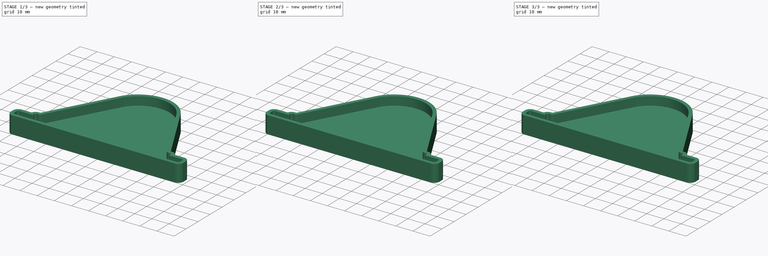
[diagram: build sequence overview — one tinted view per stage of 3, left to right]
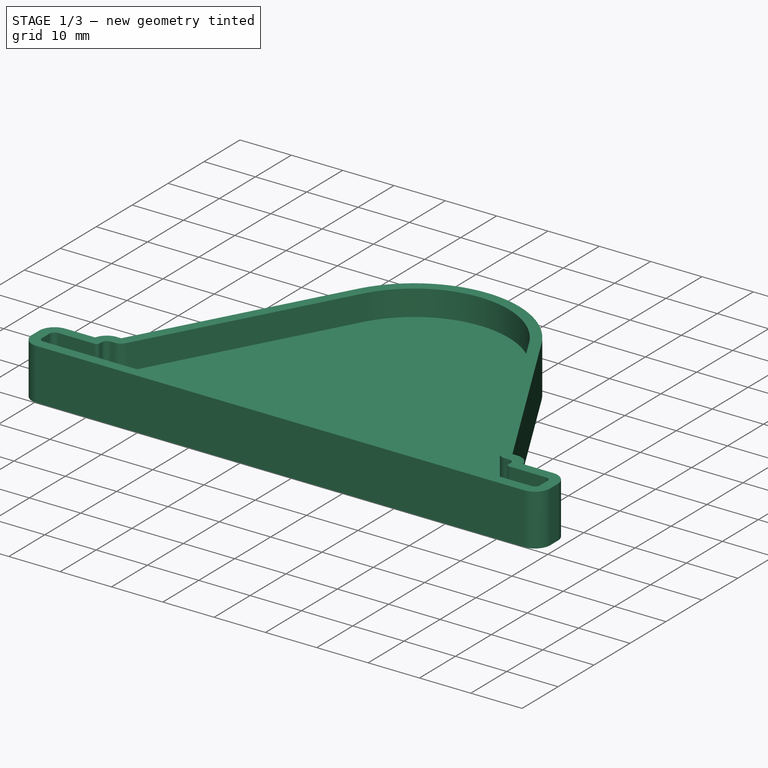
[diagram: stage 1 of 3 — iso view after this stage's code; geometry added in this stage tinted green]
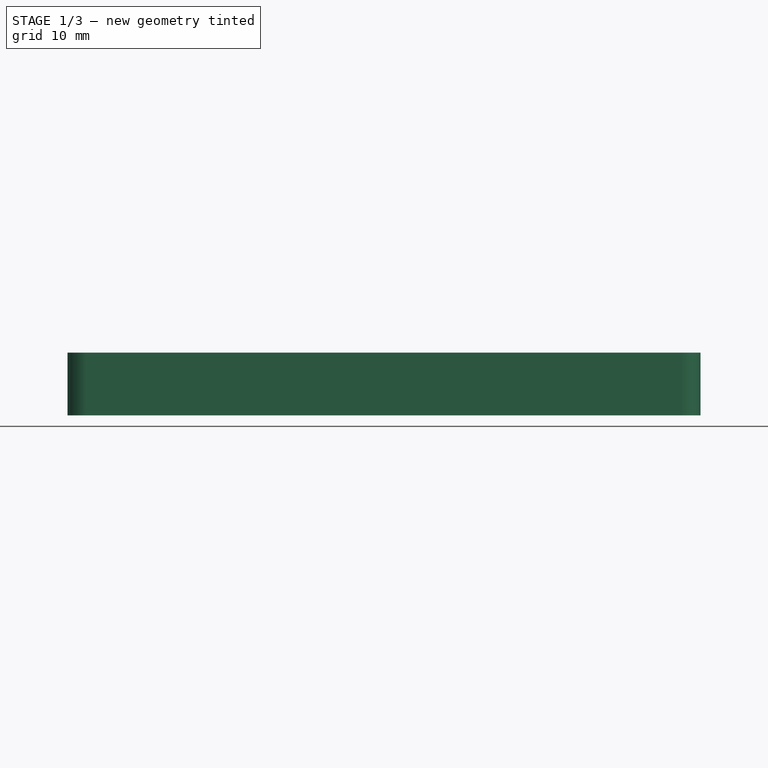
[diagram: stage 1 of 3 — front view after this stage's code; geometry added in this stage tinted green]
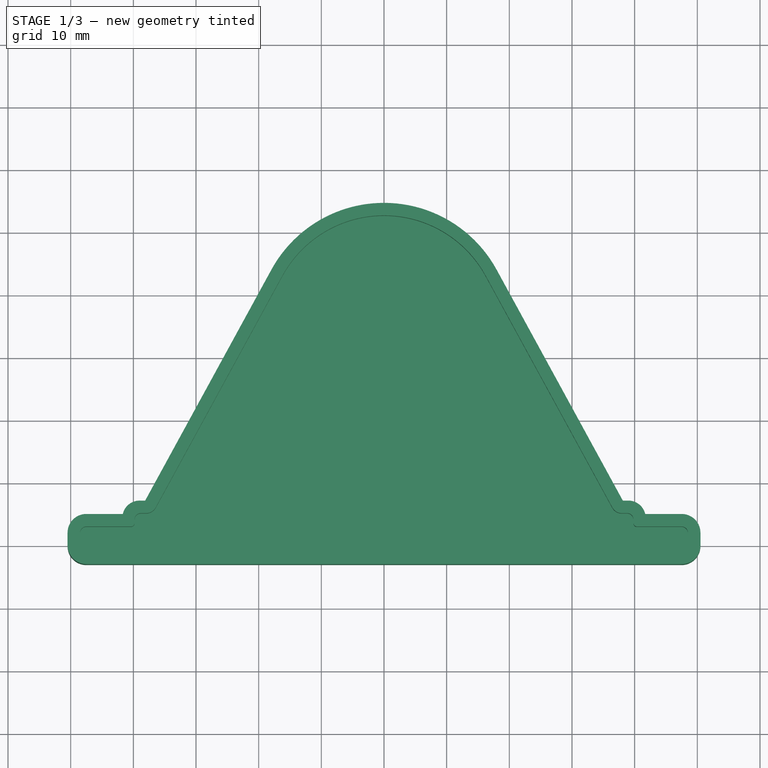
[diagram: stage 1 of 3 — top view after this stage's code; geometry added in this stage tinted green]
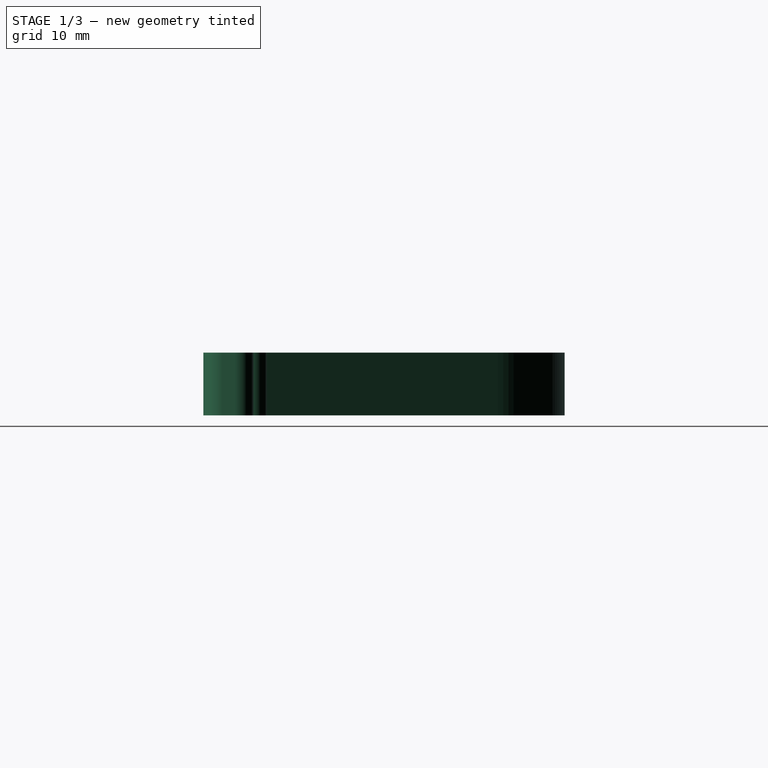
[diagram: stage 1 of 3 — right view after this stage's code; geometry added in this stage tinted green]
FCSTD DOCUMENT  (FreeCAD 1.0R39109 (Git))
Label: SoporteSensor
License: All rights reserved
LicenseURL: http://en.wikipedia.org/wiki/All_rights_reserved
objects: Sketcher::SketchObject×9, Part::Offset2D×3, PartDesign::Pad×3, PartDesign::Pocket×3, PartDesign::Body×3
note: 42 computed .brp shape members not serialized (recipe doc carries the construction recipe); baked Part::Feature solids carry a one-line shape summary decoded from their .brp

FEATURE [PartDesign::Body] Body001
  AllowCompound = false
  Group = -> [Sketch004,Sketch005,Sketch006,Pad001,Pocket001]
  Origin = -> Origin001
  Placement = pos=(62,52,0) rot=(0,0,1;3.14159rad)
  Tip = -> Pocket001
FEATURE [Sketcher::SketchObject] Sketch007
  ArcFitTolerance = 1e-06
  AttachmentSupport = -> [XY_Plane002]
  FullyConstrained = false
  MakeInternals = false
  MapMode = 5
  sketch-geometry (8):
    g0: LineSegment StartX=-47.5 StartY=0 StartZ=0 EndX=47.5 EndY=0 EndZ=0
    g1: LineSegment StartX=47.5 StartY=0 StartZ=0 EndX=47.5 EndY=2 EndZ=0
    g2: LineSegment StartX=47.5 StartY=2 StartZ=0 EndX=37.5 EndY=2 EndZ=0
    g3: LineSegment StartX=-47.5 StartY=2 StartZ=0 EndX=-47.5 EndY=0 EndZ=0
    g4: LineSegment StartX=-37.5 StartY=2 StartZ=0 EndX=-47.5 EndY=2 EndZ=0
    g5: ArcOfCircle CenterX=0 CenterY=34.1832 CenterZ=0 NormalX=0 NormalY=0 NormalZ=1 AngleXU=0 Radius=17.4714 StartAngle=0.483606 EndAngle=2.64141
    g6: LineSegment StartX=-15.3311 StartY=42.5623 StartZ=0 EndX=-37.5 EndY=2 EndZ=0
    g7: LineSegment StartX=15.4679 StartY=42.307 StartZ=0 EndX=37.5 EndY=2 EndZ=0
  constraints (18):
    c: Coincident(g0,g1)
    c: Coincident(g1,g2)
    c: Coincident(g4,g3)
    c: Coincident(g3,g0)
    c: Horizontal(g0)
    c: Horizontal(g2)
    c: Vertical(g1)
    c: Vertical(g3)
    c: Distance(g1,g3) = 95
    c: Distance(g0,g4) = 2
    c: PointOnObject(g0,g-1)
    c: PointOnObject(g6,g4)
    c: Equal(g2,g4)
    c: Horizontal(g4)
    c: Symmetric(g6,g2,g-2)
    c: PointOnObject(g5,g-2)
    c: Tangent(g5,g6) = -1.5708
    c: Coincident(g5,g7)
FEATURE [Sketcher::SketchObject] Sketch009
  ArcFitTolerance = 1e-06
  FullyConstrained = false
  MakeInternals = false
  Placement = pos=(0,0,20) rot=(0,0,1;0rad)
  sketch-geometry (26):
    g0: ArcOfCircle CenterX=-2.12857e-11 CenterY=34.1832 CenterZ=0 NormalX=0 NormalY=0 NormalZ=1 AngleXU=0 Radius=20.4714 StartAngle=0.500183 EndAngle=1.5708
    g1: ArcOfCircle CenterX=2.12857e-11 CenterY=34.1832 CenterZ=0 NormalX=0 NormalY=0 NormalZ=1 AngleXU=0 Radius=20.4714 StartAngle=1.5708 EndAngle=2.64141
    g2: LineSegment StartX=-17.9636 StartY=44.001 StartZ=0 EndX=-38.1146 EndY=7.13094 EndZ=0
    g3: LineSegment StartX=-38.8142 StartY=7.13094 StartZ=0 EndX=-38.8142 EndY=7.13094 EndZ=0
    g4: ArcOfCircle CenterX=-38.8142 CenterY=5.13094 CenterZ=0 NormalX=0 NormalY=0 NormalZ=1 AngleXU=-3.14159 Radius=2 StartAngle=4.71239 EndAngle=4.71239
    g5: ArcOfCircle CenterX=-39.8142 CenterY=4.13094 CenterZ=0 NormalX=0 NormalY=0 NormalZ=1 AngleXU=-1.5708 Radius=2 StartAngle=4.71239 EndAngle=4.71239
    g6: LineSegment StartX=-41.6856 StartY=5 StartZ=0 EndX=-47.5 EndY=5 EndZ=0
    g7: ArcOfCircle CenterX=-47.5 CenterY=2 CenterZ=0 NormalX=0 NormalY=0 NormalZ=1 AngleXU=-1.5708 Radius=3 StartAngle=3.14159 EndAngle=4.71239
    g8: ArcOfCircle CenterX=-48.5 CenterY=2 CenterZ=0 NormalX=0 NormalY=0 NormalZ=1 AngleXU=-1.5708 Radius=2 StartAngle=4.71239 EndAngle=4.71239
    g9: LineSegment StartX=-50.5 StartY=2 StartZ=0 EndX=-50.5 EndY=4e-16 EndZ=0
    g10: ArcOfCircle CenterX=-47.5 CenterY=0 CenterZ=0 NormalX=0 NormalY=0 NormalZ=1 AngleXU=0 Radius=3 StartAngle=3.14159 EndAngle=4.71239
    g11: LineSegment StartX=-47.5 StartY=-3 StartZ=0 EndX=0 EndY=-3 EndZ=0
    g12: LineSegment StartX=47.5 StartY=-3 StartZ=0 EndX=0 EndY=-3 EndZ=0
    g13: ArcOfCircle CenterX=47.5 CenterY=0 CenterZ=0 NormalX=0 NormalY=0 NormalZ=1 AngleXU=0 Radius=3 StartAngle=4.71239 EndAngle=6.28319
    g14: LineSegment StartX=50.5 StartY=2 StartZ=0 EndX=50.5 EndY=-9e-16 EndZ=0
    g15: ArcOfCircle CenterX=47.5 CenterY=2 CenterZ=0 NormalX=0 NormalY=0 NormalZ=1 AngleXU=-1.5708 Radius=3 StartAngle=1.5708 EndAngle=3.14159
    g16: LineSegment StartX=41.6856 StartY=5 StartZ=0 EndX=47.5 EndY=5 EndZ=0
    g17: ArcOfCircle CenterX=39.8142 CenterY=4.13094 CenterZ=0 NormalX=0 NormalY=0 NormalZ=1 AngleXU=1.5708 Radius=2 StartAngle=4.71239 EndAngle=4.71239
    g18: ArcOfCircle CenterX=38.8142 CenterY=4.13094 CenterZ=0 NormalX=0 NormalY=0 NormalZ=1 AngleXU=0 Radius=3 StartAngle=3.16253e-08 EndAngle=1.18661e-06
    g19: ArcOfCircle CenterX=38.8142 CenterY=5.13094 CenterZ=0 NormalX=0 NormalY=0 NormalZ=1 AngleXU=-3.14159 Radius=2 StartAngle=4.71239 EndAngle=4.71239
    g20: LineSegment StartX=38.8142 StartY=7.13094 StartZ=0 EndX=38.1146 EndY=7.13094 EndZ=0
    g21: LineSegment StartX=17.9636 StartY=44.001 StartZ=0 EndX=38.1146 EndY=7.13094 EndZ=0
    g22: ArcOfCircle CenterX=-38.8142 CenterY=4.13094 CenterZ=0 NormalX=0 NormalY=0 NormalZ=1 AngleXU=0 Radius=3 StartAngle=3.14159 EndAngle=3.14159
    g23: LineSegment StartX=-38.8142 StartY=7.13094 StartZ=0 EndX=-38.1146 EndY=7.13094 EndZ=0
    g24: ArcOfCircle CenterX=-38.9842 CenterY=4.36004 CenterZ=0 NormalX=0 NormalY=0 NormalZ=1 AngleXU=0 Radius=2.77611 StartAngle=1.50951 EndAngle=2.90898
    g25: ArcOfCircle CenterX=38.9812 CenterY=4.35596 CenterZ=0 NormalX=0 NormalY=0 NormalZ=1 AngleXU=0 Radius=2.78 StartAngle=0.233793 EndAngle=1.6309
  constraints (37):
    c: Coincident(g0,g1)
    c: Coincident(g1,g2)
    c: Horizontal(g3)
    c: Coincident(g3,g4)
    c: Coincident(g22,g5)
    c: Horizontal(g6)
    c: Coincident(g6,g7)
    c: Coincident(g7,g8)
    c: Coincident(g8,g9)
    c: Vertical(g9)
    c: Coincident(g9,g10)
    c: Coincident(g10,g11)
    c: Horizontal(g11)
    c: Coincident(g11,g12)
    c: Horizontal(g12)
    c: Coincident(g12,g13)
    c: Coincident(g13,g14)
    c: Vertical(g14)
    c: Coincident(g14,g15)
    c: Coincident(g15,g16)
    c: Horizontal(g16)
    c: Coincident(g17,g18)
    c: Coincident(g19,g20)
    c: Horizontal(g20)
    c: Coincident(g20,g21)
    c: Coincident(g21,g0)
    c: Coincident(g5,g22)
    c: PointOnObject(g3,g4)
    c: Coincident(g23,g3)
    c: Coincident(g23,g2)
    c: Horizontal(g23)
    c: Coincident(g17,g18)
    c: Coincident(g24,g4)
    c: Coincident(g24,g6)
    c: Coincident(g25,g19)
    c: Coincident(g25,g16)
    c: Radius(g25) = 2.78
FEATURE [PartDesign::Pad] Pad002
  Direction = (0,0,1)
  Length = 10
  Length2 = 10
  Placement = pos=(0,0,20) rot=(0,0,1;0rad)
  Profile = -> Sketch009
  ReferenceAxis = -> Sketch009 [N_Axis]
  Suppressed = false
  Type = 0
FEATURE [Sketcher::SketchObject] Sketch008
  ArcFitTolerance = 1e-06
  AttachmentSupport = -> [Pad002]
  FullyConstrained = false
  MakeInternals = false
  MapMode = 5
  Placement = pos=(0,0,30) rot=(0,0,1;0rad)
  sketch-geometry (32):
    g0: ArcOfCircle CenterX=2.12857e-11 CenterY=34.1832 CenterZ=0 NormalX=0 NormalY=0 NormalZ=1 AngleXU=0 Radius=18.4714 StartAngle=1.5708 EndAngle=2.64141
    g1: LineSegment StartX=-16.2086 StartY=43.0418 StartZ=0 EndX=-36.4299 EndY=6.04302 EndZ=0
    g2: LineSegment StartX=-40.3797 StartY=3 StartZ=0 EndX=-47.5 EndY=3 EndZ=0
    g3: ArcOfCircle CenterX=-47.5 CenterY=2 CenterZ=0 NormalX=0 NormalY=0 NormalZ=1 AngleXU=-1.5708 Radius=1 StartAngle=3.14159 EndAngle=4.71239
    g4: LineSegment StartX=-48.5 StartY=2 StartZ=0 EndX=-48.5 EndY=2e-16 EndZ=0
    g5: ArcOfCircle CenterX=-47.5 CenterY=1e-16 CenterZ=0 NormalX=0 NormalY=0 NormalZ=1 AngleXU=0 Radius=1 StartAngle=3.14159 EndAngle=4.71239
    g6: LineSegment StartX=-47.5 StartY=-1 StartZ=0 EndX=0 EndY=-1 EndZ=0
    g7: ArcOfCircle CenterX=-38.8142 CenterY=4.13094 CenterZ=0 NormalX=0 NormalY=0 NormalZ=1 AngleXU=0 Radius=1 StartAngle=1.5708 EndAngle=3.14159
    g8: GeomPoint [constr] X=-36.8142 Y=2.13094 Z=0
    g9: GeomPoint [constr] X=-39.8142 Y=5.13094 Z=0
    g10: LineSegment StartX=-38.8142 StartY=5.13094 StartZ=0 EndX=-37.9678 EndY=5.13094 EndZ=0
    g11: ArcOfCircle CenterX=-37.9678 CenterY=6.88354 CenterZ=0 NormalX=0 NormalY=0 NormalZ=1 AngleXU=0 Radius=1.7526 StartAngle=4.71239 EndAngle=5.783
    g12: GeomPoint [constr] X=-36.9284 Y=5.13094 Z=0
    g13: ArcOfCircle CenterX=-40.3797 CenterY=3.56547 CenterZ=0 NormalX=0 NormalY=0 NormalZ=1 AngleXU=0 Radius=0.565469 StartAngle=4.71239 EndAngle=6.28319
    g14: GeomPoint [constr] X=-39.8142 Y=3 Z=0
    g15: LineSegment StartX=-39.8142 StartY=4.13094 StartZ=0 EndX=-39.8142 EndY=3.56547 EndZ=0
    g16: ArcOfCircle CenterX=-2.12857e-11 CenterY=34.1832 CenterZ=0 NormalX=0 NormalY=0 NormalZ=1 AngleXU=0 Radius=18.4714 StartAngle=0.500183 EndAngle=1.5708
    g17: LineSegment StartX=16.2086 StartY=43.0418 StartZ=0 EndX=36.4299 EndY=6.04302 EndZ=0
    g18: LineSegment StartX=40.3797 StartY=3 StartZ=0 EndX=47.5 EndY=3 EndZ=0
    g19: ArcOfCircle CenterX=47.5 CenterY=2 CenterZ=0 NormalX=0 NormalY=0 NormalZ=1 AngleXU=-1.5708 Radius=1 StartAngle=1.5708 EndAngle=3.14159
    g20: LineSegment StartX=48.5 StartY=2 StartZ=0 EndX=48.5 EndY=-4e-16 EndZ=0
    g21: ArcOfCircle CenterX=47.5 CenterY=0 CenterZ=0 NormalX=0 NormalY=0 NormalZ=1 AngleXU=0 Radius=1 StartAngle=4.71239 EndAngle=6.28319
    g22: LineSegment StartX=47.5 StartY=-1 StartZ=0 EndX=0 EndY=-1 EndZ=0
    g23: ArcOfCircle CenterX=38.8142 CenterY=4.13094 CenterZ=0 NormalX=0 NormalY=0 NormalZ=1 AngleXU=0 Radius=1 StartAngle=3.16253e-08 EndAngle=1.5708
    g24: GeomPoint [constr] X=36.8142 Y=2.13094 Z=0
    g25: GeomPoint [constr] X=39.8142 Y=5.13094 Z=0
    g26: LineSegment StartX=38.8142 StartY=5.13094 StartZ=0 EndX=37.9678 EndY=5.13094 EndZ=0
    g27: ArcOfCircle CenterX=37.9678 CenterY=6.88354 CenterZ=0 NormalX=0 NormalY=0 NormalZ=1 AngleXU=0 Radius=1.7526 StartAngle=3.64178 EndAngle=4.71239
    g28: GeomPoint [constr] X=36.9284 Y=5.13094 Z=0
    g29: ArcOfCircle CenterX=40.3797 CenterY=3.56547 CenterZ=0 NormalX=0 NormalY=0 NormalZ=1 AngleXU=0 Radius=0.565469 StartAngle=3.14159 EndAngle=4.71239
    g30: GeomPoint [constr] X=39.8142 Y=3 Z=0
    g31: LineSegment StartX=39.8142 StartY=4.13094 StartZ=0 EndX=39.8142 EndY=3.56547 EndZ=0
  constraints (38):
    c: Coincident(g0,g1)
    c: Horizontal(g2)
    c: Coincident(g2,g3)
    c: Coincident(g3,g4)
    c: Vertical(g4)
    c: Coincident(g4,g5)
    c: Coincident(g5,g6)
    c: Horizontal(g6)
    c: Horizontal(g10)
    c: Coincident(g10,g7)
    c: PointOnObject(g12,g1)
    c: PointOnObject(g12,g10)
    c: Tangent(g1,g11) = 1.5708
    c: Tangent(g10,g11) = -1.5708
    c: PointOnObject(g14,g2)
    c: Tangent(g2,g13) = 1.5708
    c: Coincident(g15,g7)
    c: Coincident(g15,g13)
    c: Vertical(g15)
    c: Coincident(g16,g17)
    c: Horizontal(g18)
    c: Coincident(g18,g19)
    c: Coincident(g19,g20)
    c: Vertical(g20)
    c: Coincident(g20,g21)
    c: Coincident(g21,g22)
    c: Horizontal(g22)
    c: Horizontal(g26)
    c: Coincident(g26,g23)
    c: PointOnObject(g28,g17)
    c: PointOnObject(g28,g26)
    c: Tangent(g17,g27) = -1.5708
    c: Tangent(g26,g27) = 1.5708
    c: PointOnObject(g30,g18)
    c: Tangent(g18,g29) = -1.5708
    c: Coincident(g31,g23)
    c: Coincident(g31,g29)
    c: Vertical(g31)
FEATURE [PartDesign::Pocket] Pocket002
  BaseFeature = -> Pad002
  Direction = (0,0,-1)
  Length = 5
  Length2 = 5
  Placement = pos=(0,0,20) rot=(0,0,1;0rad)
  Profile = -> Sketch008
  ReferenceAxis = -> Sketch008 [N_Axis]
  Suppressed = false
  Type = 0
FEATURE [PartDesign::Body] Body002
  AllowCompound = false
  Group = -> [Sketch007,Sketch008,Sketch009,Pad002,Pocket002]
  Origin = -> Origin002
  Placement = pos=(124,0,0) rot=(0,0,1;0rad)
  Tip = -> Pocket002
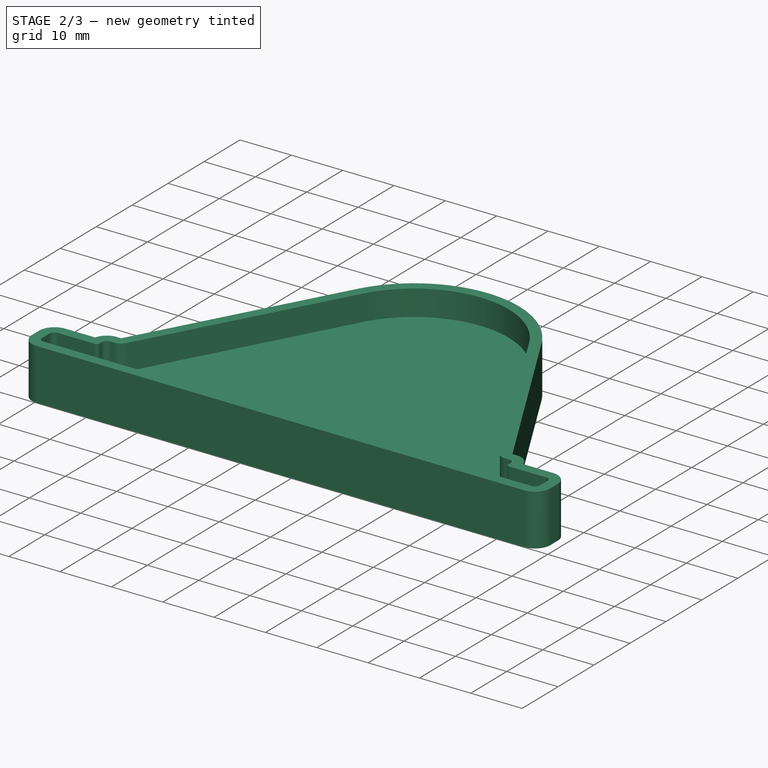
[diagram: stage 2 of 3 — iso view after this stage's code; geometry added in this stage tinted green]
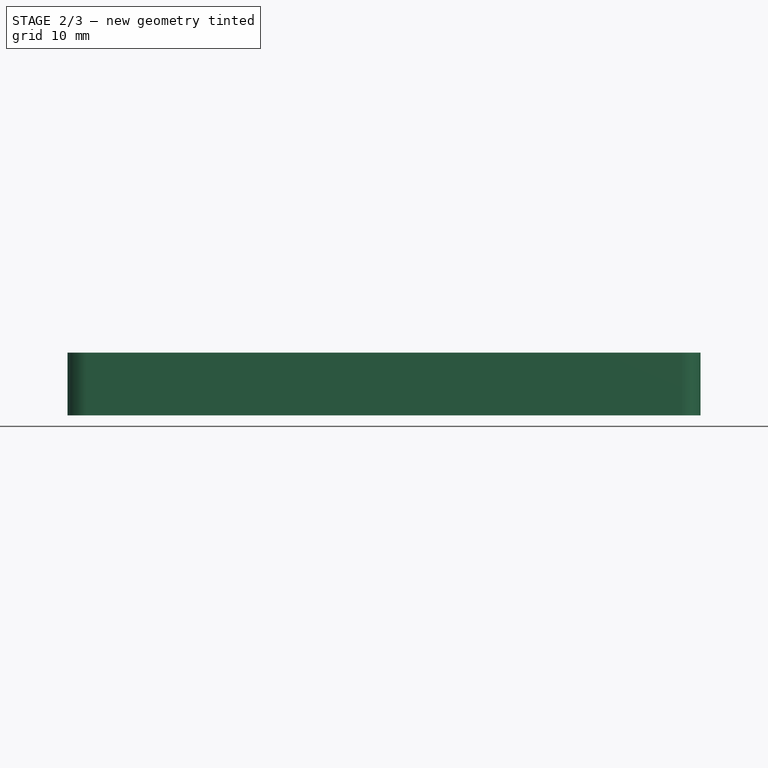
[diagram: stage 2 of 3 — front view after this stage's code; geometry added in this stage tinted green]
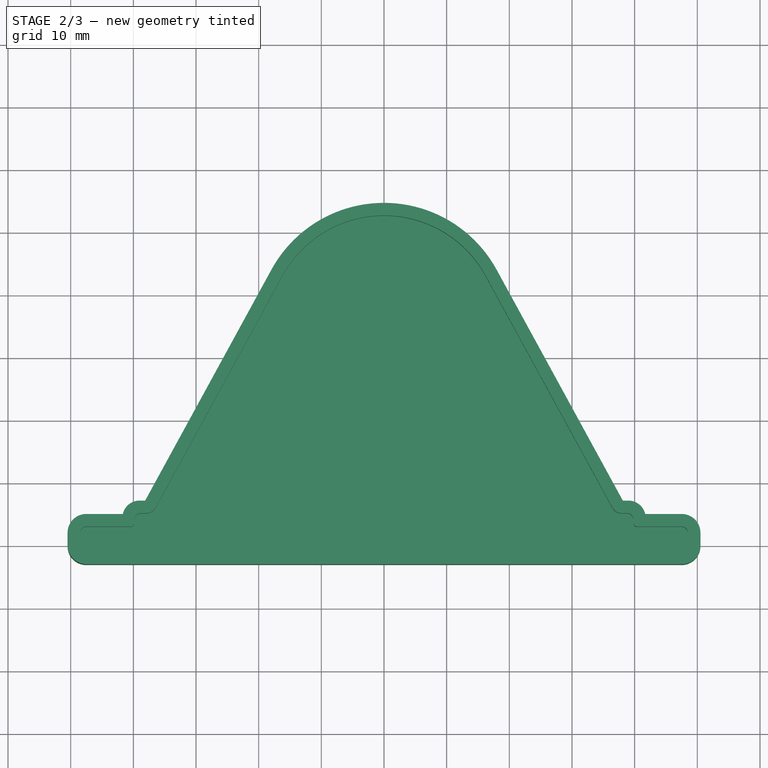
[diagram: stage 2 of 3 — top view after this stage's code; geometry added in this stage tinted green]
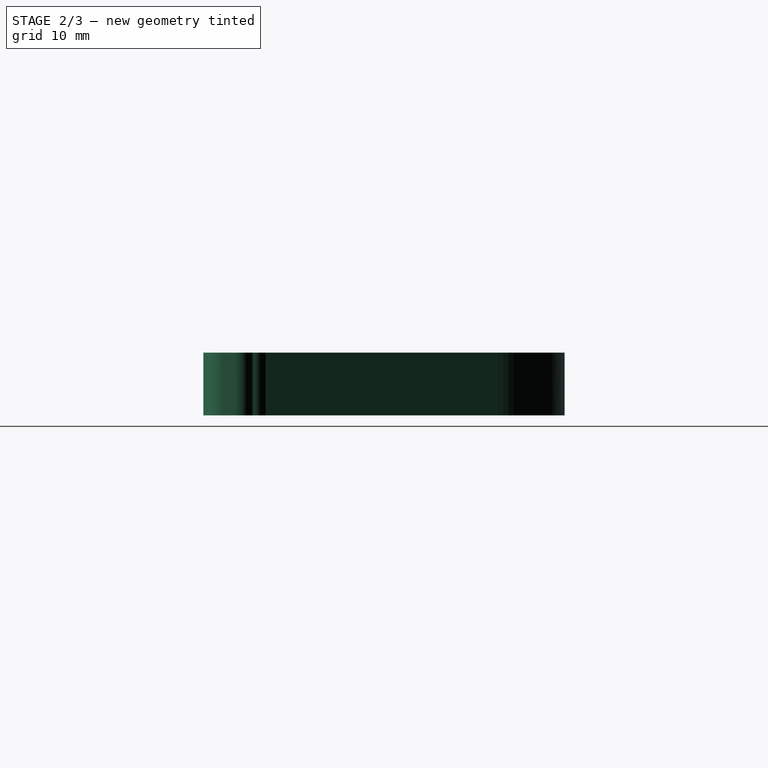
[diagram: stage 2 of 3 — right view after this stage's code; geometry added in this stage tinted green]
FEATURE [PartDesign::Body] Body
  AllowCompound = false
  Group = -> [Sketch,Sketch002,Sketch003,Pad,Pocket]
  Origin = -> Origin
  Tip = -> Pocket
FEATURE [Sketcher::SketchObject] Sketch004
  ArcFitTolerance = 1e-06
  AttachmentSupport = -> [XY_Plane001]
  FullyConstrained = false
  MakeInternals = false
  MapMode = 5
  sketch-geometry (8):
    g0: LineSegment StartX=-47.5 StartY=0 StartZ=0 EndX=47.5 EndY=0 EndZ=0
    g1: LineSegment StartX=47.5 StartY=0 StartZ=0 EndX=47.5 EndY=2 EndZ=0
    g2: LineSegment StartX=47.5 StartY=2 StartZ=0 EndX=37.5 EndY=2 EndZ=0
    g3: LineSegment StartX=-47.5 StartY=2 StartZ=0 EndX=-47.5 EndY=0 EndZ=0
    g4: LineSegment StartX=-37.5 StartY=2 StartZ=0 EndX=-47.5 EndY=2 EndZ=0
    g5: ArcOfCircle CenterX=0 CenterY=34.1832 CenterZ=0 NormalX=0 NormalY=0 NormalZ=1 AngleXU=0 Radius=17.4714 StartAngle=0.483606 EndAngle=2.64141
    g6: LineSegment StartX=-15.3311 StartY=42.5623 StartZ=0 EndX=-37.5 EndY=2 EndZ=0
    g7: LineSegment StartX=15.4679 StartY=42.307 StartZ=0 EndX=37.5 EndY=2 EndZ=0
  constraints (18):
    c: Coincident(g0,g1)
    c: Coincident(g1,g2)
    c: Coincident(g4,g3)
    c: Coincident(g3,g0)
    c: Horizontal(g0)
    c: Horizontal(g2)
    c: Vertical(g1)
    c: Vertical(g3)
    c: Distance(g1,g3) = 95
    c: Distance(g0,g4) = 2
    c: PointOnObject(g0,g-1)
    c: PointOnObject(g6,g4)
    c: Equal(g2,g4)
    c: Horizontal(g4)
    c: Symmetric(g6,g2,g-2)
    c: PointOnObject(g5,g-2)
    c: Tangent(g5,g6) = -1.5708
    c: Coincident(g5,g7)
FEATURE [Sketcher::SketchObject] Sketch006
  ArcFitTolerance = 1e-06
  FullyConstrained = false
  MakeInternals = false
  Placement = pos=(0,0,20) rot=(0,0,1;0rad)
  sketch-geometry (26):
    g0: ArcOfCircle CenterX=-2.12857e-11 CenterY=34.1832 CenterZ=0 NormalX=0 NormalY=0 NormalZ=1 AngleXU=0 Radius=20.4714 StartAngle=0.500183 EndAngle=1.5708
    g1: ArcOfCircle CenterX=2.12857e-11 CenterY=34.1832 CenterZ=0 NormalX=0 NormalY=0 NormalZ=1 AngleXU=0 Radius=20.4714 StartAngle=1.5708 EndAngle=2.64141
    g2: LineSegment StartX=-17.9636 StartY=44.001 StartZ=0 EndX=-38.1146 EndY=7.13094 EndZ=0
    g3: LineSegment StartX=-38.8142 StartY=7.13094 StartZ=0 EndX=-38.8142 EndY=7.13094 EndZ=0
    g4: ArcOfCircle CenterX=-38.8142 CenterY=5.13094 CenterZ=0 NormalX=0 NormalY=0 NormalZ=1 AngleXU=-3.14159 Radius=2 StartAngle=4.71239 EndAngle=4.71239
    g5: ArcOfCircle CenterX=-39.8142 CenterY=4.13094 CenterZ=0 NormalX=0 NormalY=0 NormalZ=1 AngleXU=-1.5708 Radius=2 StartAngle=4.71239 EndAngle=4.71239
    g6: LineSegment StartX=-41.6856 StartY=5 StartZ=0 EndX=-47.5 EndY=5 EndZ=0
    g7: ArcOfCircle CenterX=-47.5 CenterY=2 CenterZ=0 NormalX=0 NormalY=0 NormalZ=1 AngleXU=-1.5708 Radius=3 StartAngle=3.14159 EndAngle=4.71239
    g8: ArcOfCircle CenterX=-48.5 CenterY=2 CenterZ=0 NormalX=0 NormalY=0 NormalZ=1 AngleXU=-1.5708 Radius=2 StartAngle=4.71239 EndAngle=4.71239
    g9: LineSegment StartX=-50.5 StartY=2 StartZ=0 EndX=-50.5 EndY=4e-16 EndZ=0
    g10: ArcOfCircle CenterX=-47.5 CenterY=0 CenterZ=0 NormalX=0 NormalY=0 NormalZ=1 AngleXU=0 Radius=3 StartAngle=3.14159 EndAngle=4.71239
    g11: LineSegment StartX=-47.5 StartY=-3 StartZ=0 EndX=0 EndY=-3 EndZ=0
    g12: LineSegment StartX=47.5 StartY=-3 StartZ=0 EndX=0 EndY=-3 EndZ=0
    g13: ArcOfCircle CenterX=47.5 CenterY=0 CenterZ=0 NormalX=0 NormalY=0 NormalZ=1 AngleXU=0 Radius=3 StartAngle=4.71239 EndAngle=6.28319
    g14: LineSegment StartX=50.5 StartY=2 StartZ=0 EndX=50.5 EndY=-9e-16 EndZ=0
    g15: ArcOfCircle CenterX=47.5 CenterY=2 CenterZ=0 NormalX=0 NormalY=0 NormalZ=1 AngleXU=-1.5708 Radius=3 StartAngle=1.5708 EndAngle=3.14159
    g16: LineSegment StartX=41.6856 StartY=5 StartZ=0 EndX=47.5 EndY=5 EndZ=0
    g17: ArcOfCircle CenterX=39.8142 CenterY=4.13094 CenterZ=0 NormalX=0 NormalY=0 NormalZ=1 AngleXU=1.5708 Radius=2 StartAngle=4.71239 EndAngle=4.71239
    g18: ArcOfCircle CenterX=38.8142 CenterY=4.13094 CenterZ=0 NormalX=0 NormalY=0 NormalZ=1 AngleXU=0 Radius=3 StartAngle=3.16253e-08 EndAngle=1.18661e-06
    g19: ArcOfCircle CenterX=38.8142 CenterY=5.13094 CenterZ=0 NormalX=0 NormalY=0 NormalZ=1 AngleXU=-3.14159 Radius=2 StartAngle=4.71239 EndAngle=4.71239
    g20: LineSegment StartX=38.8142 StartY=7.13094 StartZ=0 EndX=38.1146 EndY=7.13094 EndZ=0
    g21: LineSegment StartX=17.9636 StartY=44.001 StartZ=0 EndX=38.1146 EndY=7.13094 EndZ=0
    g22: ArcOfCircle CenterX=-38.8142 CenterY=4.13094 CenterZ=0 NormalX=0 NormalY=0 NormalZ=1 AngleXU=0 Radius=3 StartAngle=3.14159 EndAngle=3.14159
    g23: LineSegment StartX=-38.8142 StartY=7.13094 StartZ=0 EndX=-38.1146 EndY=7.13094 EndZ=0
    g24: ArcOfCircle CenterX=-38.9842 CenterY=4.36004 CenterZ=0 NormalX=0 NormalY=0 NormalZ=1 AngleXU=0 Radius=2.77611 StartAngle=1.50951 EndAngle=2.90898
    g25: ArcOfCircle CenterX=38.9812 CenterY=4.35596 CenterZ=0 NormalX=0 NormalY=0 NormalZ=1 AngleXU=0 Radius=2.78 StartAngle=0.233793 EndAngle=1.6309
  constraints (37):
    c: Coincident(g0,g1)
    c: Coincident(g1,g2)
    c: Horizontal(g3)
    c: Coincident(g3,g4)
    c: Coincident(g22,g5)
    c: Horizontal(g6)
    c: Coincident(g6,g7)
    c: Coincident(g7,g8)
    c: Coincident(g8,g9)
    c: Vertical(g9)
    c: Coincident(g9,g10)
    c: Coincident(g10,g11)
    c: Horizontal(g11)
    c: Coincident(g11,g12)
    c: Horizontal(g12)
    c: Coincident(g12,g13)
    c: Coincident(g13,g14)
    c: Vertical(g14)
    c: Coincident(g14,g15)
    c: Coincident(g15,g16)
    c: Horizontal(g16)
    c: Coincident(g17,g18)
    c: Coincident(g19,g20)
    c: Horizontal(g20)
    c: Coincident(g20,g21)
    c: Coincident(g21,g0)
    c: Coincident(g5,g22)
    c: PointOnObject(g3,g4)
    c: Coincident(g23,g3)
    c: Coincident(g23,g2)
    c: Horizontal(g23)
    c: Coincident(g17,g18)
    c: Coincident(g24,g4)
    c: Coincident(g24,g6)
    c: Coincident(g25,g19)
    c: Coincident(g25,g16)
    c: Radius(g25) = 2.78
FEATURE [PartDesign::Pad] Pad001
  Direction = (0,0,1)
  Length = 10
  Length2 = 10
  Placement = pos=(0,0,20) rot=(0,0,1;0rad)
  Profile = -> Sketch006
  ReferenceAxis = -> Sketch006 [N_Axis]
  Suppressed = false
  Type = 0
FEATURE [Sketcher::SketchObject] Sketch005
  ArcFitTolerance = 1e-06
  AttachmentSupport = -> [Pad001]
  FullyConstrained = false
  MakeInternals = false
  MapMode = 5
  Placement = pos=(0,0,30) rot=(0,0,1;0rad)
  sketch-geometry (32):
    g0: ArcOfCircle CenterX=2.12857e-11 CenterY=34.1832 CenterZ=0 NormalX=0 NormalY=0 NormalZ=1 AngleXU=0 Radius=18.4714 StartAngle=1.5708 EndAngle=2.64141
    g1: LineSegment StartX=-16.2086 StartY=43.0418 StartZ=0 EndX=-36.4299 EndY=6.04302 EndZ=0
    g2: LineSegment StartX=-40.3797 StartY=3 StartZ=0 EndX=-47.5 EndY=3 EndZ=0
    g3: ArcOfCircle CenterX=-47.5 CenterY=2 CenterZ=0 NormalX=0 NormalY=0 NormalZ=1 AngleXU=-1.5708 Radius=1 StartAngle=3.14159 EndAngle=4.71239
    g4: LineSegment StartX=-48.5 StartY=2 StartZ=0 EndX=-48.5 EndY=2e-16 EndZ=0
    g5: ArcOfCircle CenterX=-47.5 CenterY=1e-16 CenterZ=0 NormalX=0 NormalY=0 NormalZ=1 AngleXU=0 Radius=1 StartAngle=3.14159 EndAngle=4.71239
    g6: LineSegment StartX=-47.5 StartY=-1 StartZ=0 EndX=0 EndY=-1 EndZ=0
    g7: ArcOfCircle CenterX=-38.8142 CenterY=4.13094 CenterZ=0 NormalX=0 NormalY=0 NormalZ=1 AngleXU=0 Radius=1 StartAngle=1.5708 EndAngle=3.14159
    g8: GeomPoint [constr] X=-36.8142 Y=2.13094 Z=0
    g9: GeomPoint [constr] X=-39.8142 Y=5.13094 Z=0
    g10: LineSegment StartX=-38.8142 StartY=5.13094 StartZ=0 EndX=-37.9678 EndY=5.13094 EndZ=0
    g11: ArcOfCircle CenterX=-37.9678 CenterY=6.88354 CenterZ=0 NormalX=0 NormalY=0 NormalZ=1 AngleXU=0 Radius=1.7526 StartAngle=4.71239 EndAngle=5.783
    g12: GeomPoint [constr] X=-36.9284 Y=5.13094 Z=0
    g13: ArcOfCircle CenterX=-40.3797 CenterY=3.56547 CenterZ=0 NormalX=0 NormalY=0 NormalZ=1 AngleXU=0 Radius=0.565469 StartAngle=4.71239 EndAngle=6.28319
    g14: GeomPoint [constr] X=-39.8142 Y=3 Z=0
    g15: LineSegment StartX=-39.8142 StartY=4.13094 StartZ=0 EndX=-39.8142 EndY=3.56547 EndZ=0
    g16: ArcOfCircle CenterX=-2.12857e-11 CenterY=34.1832 CenterZ=0 NormalX=0 NormalY=0 NormalZ=1 AngleXU=0 Radius=18.4714 StartAngle=0.500183 EndAngle=1.5708
    g17: LineSegment StartX=16.2086 StartY=43.0418 StartZ=0 EndX=36.4299 EndY=6.04302 EndZ=0
    g18: LineSegment StartX=40.3797 StartY=3 StartZ=0 EndX=47.5 EndY=3 EndZ=0
    g19: ArcOfCircle CenterX=47.5 CenterY=2 CenterZ=0 NormalX=0 NormalY=0 NormalZ=1 AngleXU=-1.5708 Radius=1 StartAngle=1.5708 EndAngle=3.14159
    g20: LineSegment StartX=48.5 StartY=2 StartZ=0 EndX=48.5 EndY=0 EndZ=0
    g21: ArcOfCircle CenterX=47.5 CenterY=0 CenterZ=0 NormalX=0 NormalY=0 NormalZ=1 AngleXU=0 Radius=1 StartAngle=4.71239 EndAngle=6.28319
    g22: LineSegment StartX=47.5 StartY=-1 StartZ=0 EndX=0 EndY=-1 EndZ=0
    g23: ArcOfCircle CenterX=38.8142 CenterY=4.13094 CenterZ=0 NormalX=0 NormalY=0 NormalZ=1 AngleXU=0 Radius=1 StartAngle=3.16253e-08 EndAngle=1.5708
    g24: GeomPoint [constr] X=36.8142 Y=2.13094 Z=0
    g25: GeomPoint [constr] X=39.8142 Y=5.13094 Z=0
    g26: LineSegment StartX=38.8142 StartY=5.13094 StartZ=0 EndX=37.9678 EndY=5.13094 EndZ=0
    g27: ArcOfCircle CenterX=37.9678 CenterY=6.88354 CenterZ=0 NormalX=0 NormalY=0 NormalZ=1 AngleXU=0 Radius=1.7526 StartAngle=3.64178 EndAngle=4.71239
    g28: GeomPoint [constr] X=36.9284 Y=5.13094 Z=0
    g29: ArcOfCircle CenterX=40.3797 CenterY=3.56547 CenterZ=0 NormalX=0 NormalY=0 NormalZ=1 AngleXU=0 Radius=0.565469 StartAngle=3.14159 EndAngle=4.71239
    g30: GeomPoint [constr] X=39.8142 Y=3 Z=0
    g31: LineSegment StartX=39.8142 StartY=4.13094 StartZ=0 EndX=39.8142 EndY=3.56547 EndZ=0
  constraints (38):
    c: Coincident(g0,g1)
    c: Horizontal(g2)
    c: Coincident(g2,g3)
    c: Coincident(g3,g4)
    c: Vertical(g4)
    c: Coincident(g4,g5)
    c: Coincident(g5,g6)
    c: Horizontal(g6)
    c: Horizontal(g10)
    c: Coincident(g10,g7)
    c: PointOnObject(g12,g1)
    c: PointOnObject(g12,g10)
    c: Tangent(g1,g11) = 1.5708
    c: Tangent(g10,g11) = -1.5708
    c: PointOnObject(g14,g2)
    c: Tangent(g2,g13) = 1.5708
    c: Coincident(g15,g7)
    c: Coincident(g15,g13)
    c: Vertical(g15)
    c: Coincident(g16,g17)
    c: Horizontal(g18)
    c: Coincident(g18,g19)
    c: Coincident(g19,g20)
    c: Vertical(g20)
    c: Coincident(g20,g21)
    c: Coincident(g21,g22)
    c: Horizontal(g22)
    c: Horizontal(g26)
    c: Coincident(g26,g23)
    c: PointOnObject(g28,g17)
    c: PointOnObject(g28,g26)
    c: Tangent(g17,g27) = -1.5708
    c: Tangent(g26,g27) = 1.5708
    c: PointOnObject(g30,g18)
    c: Tangent(g18,g29) = -1.5708
    c: Coincident(g31,g23)
    c: Coincident(g31,g29)
    c: Vertical(g31)
FEATURE [PartDesign::Pocket] Pocket001
  BaseFeature = -> Pad001
  Direction = (0,0,-1)
  Length = 5
  Length2 = 5
  Placement = pos=(0,0,20) rot=(0,0,1;0rad)
  Profile = -> Sketch005
  ReferenceAxis = -> Sketch005 [N_Axis]
  Suppressed = false
  Type = 0
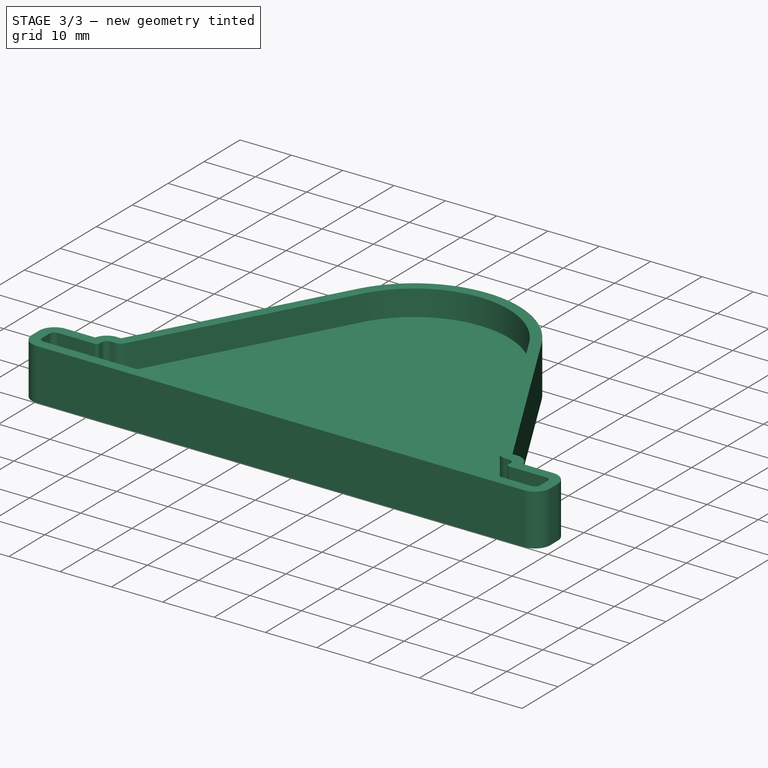
[diagram: stage 3 of 3 — iso view after this stage's code; geometry added in this stage tinted green]
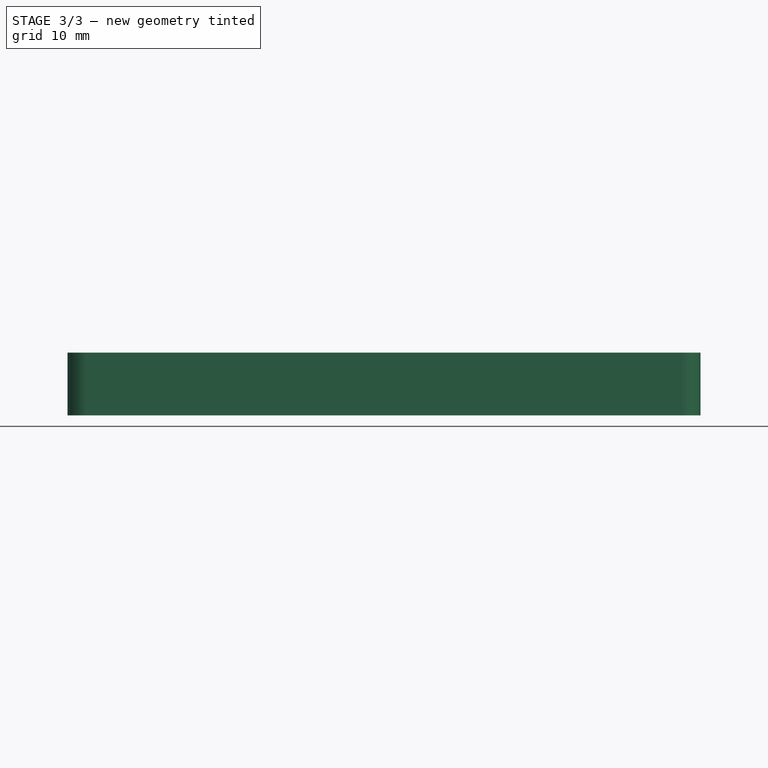
[diagram: stage 3 of 3 — front view after this stage's code; geometry added in this stage tinted green]
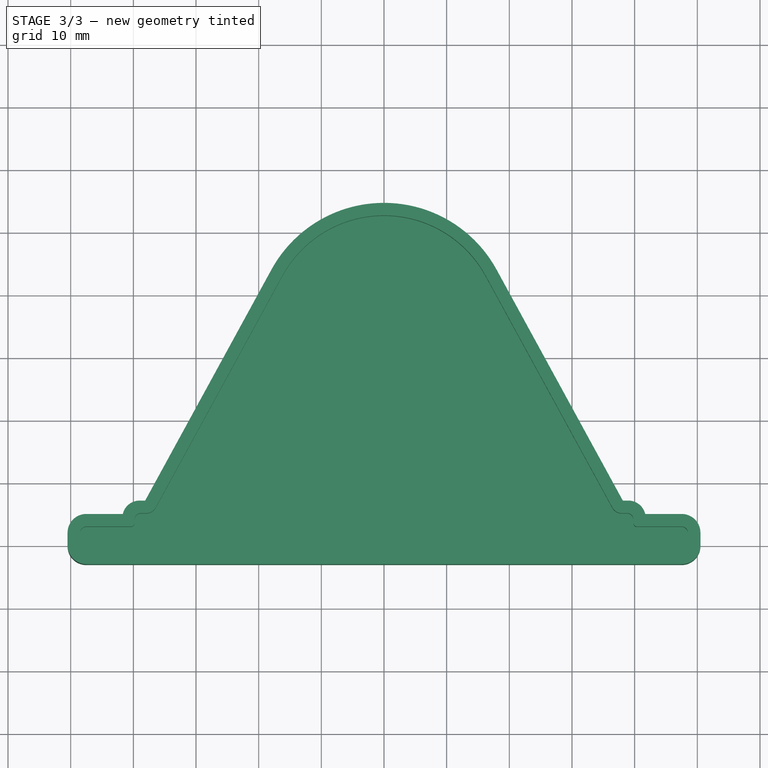
[diagram: stage 3 of 3 — top view after this stage's code; geometry added in this stage tinted green]
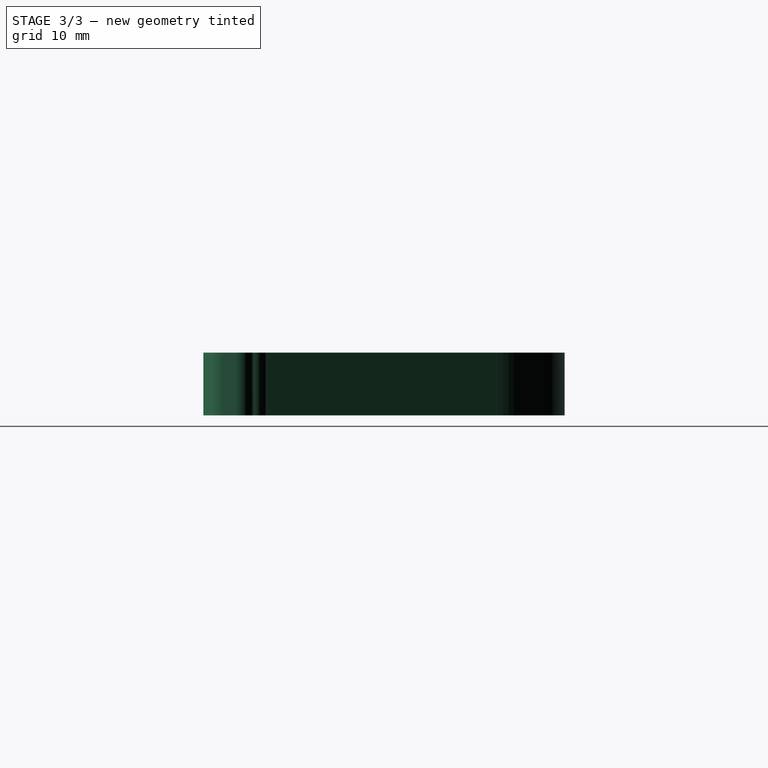
[diagram: stage 3 of 3 — right view after this stage's code; geometry added in this stage tinted green]
FEATURE [Sketcher::SketchObject] Sketch
  ArcFitTolerance = 1e-06
  AttachmentSupport = -> [XY_Plane]
  FullyConstrained = false
  MakeInternals = false
  MapMode = 5
  sketch-geometry (8):
    g0: LineSegment StartX=-47.5 StartY=0 StartZ=0 EndX=47.5 EndY=0 EndZ=0
    g1: LineSegment StartX=47.5 StartY=0 StartZ=0 EndX=47.5 EndY=2 EndZ=0
    g2: LineSegment StartX=47.5 StartY=2 StartZ=0 EndX=37.5 EndY=2 EndZ=0
    g3: LineSegment StartX=-47.5 StartY=2 StartZ=0 EndX=-47.5 EndY=0 EndZ=0
    g4: LineSegment StartX=-37.5 StartY=2 StartZ=0 EndX=-47.5 EndY=2 EndZ=0
    g5: ArcOfCircle CenterX=0 CenterY=34.1832 CenterZ=0 NormalX=0 NormalY=0 NormalZ=1 AngleXU=0 Radius=17.4714 StartAngle=0.483606 EndAngle=2.64141
    g6: LineSegment StartX=-15.3311 StartY=42.5623 StartZ=0 EndX=-37.5 EndY=2 EndZ=0
    g7: LineSegment StartX=15.4679 StartY=42.307 StartZ=0 EndX=37.5 EndY=2 EndZ=0
  constraints (18):
    c: Coincident(g0,g1)
    c: Coincident(g1,g2)
    c: Coincident(g4,g3)
    c: Coincident(g3,g0)
    c: Horizontal(g0)
    c: Horizontal(g2)
    c: Vertical(g1)
    c: Vertical(g3)
    c: Distance(g1,g3) = 95
    c: Distance(g0,g4) = 2
    c: PointOnObject(g0,g-1)
    c: PointOnObject(g6,g4)
    c: Equal(g2,g4)
    c: Horizontal(g4)
    c: Symmetric(g6,g2,g-2)
    c: PointOnObject(g5,g-2)
    c: Tangent(g5,g6) = -1.5708
    c: Coincident(g5,g7)
FEATURE [Part::Offset2D] Offset2D
  Fill = false
  Intersection = false
  Join = 0
  Mode = 1
  SelfIntersection = false
  Source = -> Sketch
  Value = 1
FEATURE [Part::Offset2D] Offset2D001
  Fill = false
  Intersection = false
  Join = 0
  Mode = 1
  SelfIntersection = false
  Source = -> Sketch
  Value = 3
FEATURE [Sketcher::SketchObject] Sketch003
  ArcFitTolerance = 1e-06
  FullyConstrained = false
  MakeInternals = false
  Placement = pos=(0,0,20) rot=(0,0,1;0rad)
  sketch-geometry (26):
    g0: ArcOfCircle CenterX=-2.12857e-11 CenterY=34.1832 CenterZ=0 NormalX=0 NormalY=0 NormalZ=1 AngleXU=0 Radius=20.4714 StartAngle=0.500183 EndAngle=1.5708
    g1: ArcOfCircle CenterX=2.12857e-11 CenterY=34.1832 CenterZ=0 NormalX=0 NormalY=0 NormalZ=1 AngleXU=0 Radius=20.4714 StartAngle=1.5708 EndAngle=2.64141
    g2: LineSegment StartX=-17.9636 StartY=44.001 StartZ=0 EndX=-38.1146 EndY=7.13094 EndZ=0
    g3: LineSegment StartX=-38.8142 StartY=7.13094 StartZ=0 EndX=-38.8142 EndY=7.13094 EndZ=0
    g4: ArcOfCircle CenterX=-38.8142 CenterY=5.13094 CenterZ=0 NormalX=0 NormalY=0 NormalZ=1 AngleXU=-3.14159 Radius=2 StartAngle=4.71239 EndAngle=4.71239
    g5: ArcOfCircle CenterX=-39.8142 CenterY=4.13094 CenterZ=0 NormalX=0 NormalY=0 NormalZ=1 AngleXU=-1.5708 Radius=2 StartAngle=4.71239 EndAngle=4.71239
    g6: LineSegment StartX=-41.6856 StartY=5 StartZ=0 EndX=-47.5 EndY=5 EndZ=0
    g7: ArcOfCircle CenterX=-47.5 CenterY=2 CenterZ=0 NormalX=0 NormalY=0 NormalZ=1 AngleXU=-1.5708 Radius=3 StartAngle=3.14159 EndAngle=4.71239
    g8: ArcOfCircle CenterX=-48.5 CenterY=2 CenterZ=0 NormalX=0 NormalY=0 NormalZ=1 AngleXU=-1.5708 Radius=2 StartAngle=4.71239 EndAngle=4.71239
    g9: LineSegment StartX=-50.5 StartY=2 StartZ=0 EndX=-50.5 EndY=4e-16 EndZ=0
    g10: ArcOfCircle CenterX=-47.5 CenterY=0 CenterZ=0 NormalX=0 NormalY=0 NormalZ=1 AngleXU=0 Radius=3 StartAngle=3.14159 EndAngle=4.71239
    g11: LineSegment StartX=-47.5 StartY=-3 StartZ=0 EndX=0 EndY=-3 EndZ=0
    g12: LineSegment StartX=47.5 StartY=-3 StartZ=0 EndX=0 EndY=-3 EndZ=0
    g13: ArcOfCircle CenterX=47.5 CenterY=0 CenterZ=0 NormalX=0 NormalY=0 NormalZ=1 AngleXU=0 Radius=3 StartAngle=4.71239 EndAngle=6.28319
    g14: LineSegment StartX=50.5 StartY=2 StartZ=0 EndX=50.5 EndY=-9e-16 EndZ=0
    g15: ArcOfCircle CenterX=47.5 CenterY=2 CenterZ=0 NormalX=0 NormalY=0 NormalZ=1 AngleXU=-1.5708 Radius=3 StartAngle=1.5708 EndAngle=3.14159
    g16: LineSegment StartX=41.6856 StartY=5 StartZ=0 EndX=47.5 EndY=5 EndZ=0
    g17: ArcOfCircle CenterX=39.8142 CenterY=4.13094 CenterZ=0 NormalX=0 NormalY=0 NormalZ=1 AngleXU=1.5708 Radius=2 StartAngle=4.71239 EndAngle=4.71239
    g18: ArcOfCircle CenterX=38.8142 CenterY=4.13094 CenterZ=0 NormalX=0 NormalY=0 NormalZ=1 AngleXU=0 Radius=3 StartAngle=3.16253e-08 EndAngle=1.18661e-06
    g19: ArcOfCircle CenterX=38.8142 CenterY=5.13094 CenterZ=0 NormalX=0 NormalY=0 NormalZ=1 AngleXU=-3.14159 Radius=2 StartAngle=4.71239 EndAngle=4.71239
    g20: LineSegment StartX=38.8142 StartY=7.13094 StartZ=0 EndX=38.1146 EndY=7.13094 EndZ=0
    g21: LineSegment StartX=17.9636 StartY=44.001 StartZ=0 EndX=38.1146 EndY=7.13094 EndZ=0
    g22: ArcOfCircle CenterX=-38.8142 CenterY=4.13094 CenterZ=0 NormalX=0 NormalY=0 NormalZ=1 AngleXU=0 Radius=3 StartAngle=3.14159 EndAngle=3.14159
    g23: LineSegment StartX=-38.8142 StartY=7.13094 StartZ=0 EndX=-38.1146 EndY=7.13094 EndZ=0
    g24: ArcOfCircle CenterX=-38.9842 CenterY=4.36004 CenterZ=0 NormalX=0 NormalY=0 NormalZ=1 AngleXU=0 Radius=2.77611 StartAngle=1.50951 EndAngle=2.90898
    g25: ArcOfCircle CenterX=38.9812 CenterY=4.35596 CenterZ=0 NormalX=0 NormalY=0 NormalZ=1 AngleXU=0 Radius=2.78 StartAngle=0.233793 EndAngle=1.6309
  constraints (37):
    c: Coincident(g0,g1)
    c: Coincident(g1,g2)
    c: Horizontal(g3)
    c: Coincident(g3,g4)
    c: Coincident(g22,g5)
    c: Horizontal(g6)
    c: Coincident(g6,g7)
    c: Coincident(g7,g8)
    c: Coincident(g8,g9)
    c: Vertical(g9)
    c: Coincident(g9,g10)
    c: Coincident(g10,g11)
    c: Horizontal(g11)
    c: Coincident(g11,g12)
    c: Horizontal(g12)
    c: Coincident(g12,g13)
    c: Coincident(g13,g14)
    c: Vertical(g14)
    c: Coincident(g14,g15)
    c: Coincident(g15,g16)
    c: Horizontal(g16)
    c: Coincident(g17,g18)
    c: Coincident(g19,g20)
    c: Horizontal(g20)
    c: Coincident(g20,g21)
    c: Coincident(g21,g0)
    c: Coincident(g5,g22)
    c: PointOnObject(g3,g4)
    c: Coincident(g23,g3)
    c: Coincident(g23,g2)
    c: Horizontal(g23)
    c: Coincident(g17,g18)
    c: Coincident(g24,g4)
    c: Coincident(g24,g6)
    c: Coincident(g25,g19)
    c: Coincident(g25,g16)
    c: Radius(g25) = 2.78
FEATURE [PartDesign::Pad] Pad
  Direction = (0,0,1)
  Length = 10
  Length2 = 10
  Placement = pos=(0,0,20) rot=(0,0,1;0rad)
  Profile = -> Sketch003
  ReferenceAxis = -> Sketch003 [N_Axis]
  Suppressed = false
  Type = 0
FEATURE [Sketcher::SketchObject] Sketch002
  ArcFitTolerance = 1e-06
  AttachmentSupport = -> [Pad]
  FullyConstrained = false
  MakeInternals = false
  MapMode = 5
  Placement = pos=(0,0,30) rot=(0,0,1;0rad)
  sketch-geometry (32):
    g0: ArcOfCircle CenterX=2.12857e-11 CenterY=34.1832 CenterZ=0 NormalX=0 NormalY=0 NormalZ=1 AngleXU=0 Radius=18.4714 StartAngle=1.5708 EndAngle=2.64141
    g1: LineSegment StartX=-16.2086 StartY=43.0418 StartZ=0 EndX=-36.4299 EndY=6.04302 EndZ=0
    g2: LineSegment StartX=-40.3797 StartY=3 StartZ=0 EndX=-47.5 EndY=3 EndZ=0
    g3: ArcOfCircle CenterX=-47.5 CenterY=2 CenterZ=0 NormalX=0 NormalY=0 NormalZ=1 AngleXU=-1.5708 Radius=1 StartAngle=3.14159 EndAngle=4.71239
    g4: LineSegment StartX=-48.5 StartY=2 StartZ=0 EndX=-48.5 EndY=2e-16 EndZ=0
    g5: ArcOfCircle CenterX=-47.5 CenterY=1e-16 CenterZ=0 NormalX=0 NormalY=0 NormalZ=1 AngleXU=0 Radius=1 StartAngle=3.14159 EndAngle=4.71239
    g6: LineSegment StartX=-47.5 StartY=-1 StartZ=0 EndX=0 EndY=-1 EndZ=0
    g7: ArcOfCircle CenterX=-38.8142 CenterY=4.13094 CenterZ=0 NormalX=0 NormalY=0 NormalZ=1 AngleXU=0 Radius=1 StartAngle=1.5708 EndAngle=3.14159
    g8: GeomPoint [constr] X=-36.8142 Y=2.13094 Z=0
    g9: GeomPoint [constr] X=-39.8142 Y=5.13094 Z=0
    g10: LineSegment StartX=-38.8142 StartY=5.13094 StartZ=0 EndX=-37.9678 EndY=5.13094 EndZ=0
    g11: ArcOfCircle CenterX=-37.9678 CenterY=6.88354 CenterZ=0 NormalX=0 NormalY=0 NormalZ=1 AngleXU=0 Radius=1.7526 StartAngle=4.71239 EndAngle=5.783
    g12: GeomPoint [constr] X=-36.9284 Y=5.13094 Z=0
    g13: ArcOfCircle CenterX=-40.3797 CenterY=3.56547 CenterZ=0 NormalX=0 NormalY=0 NormalZ=1 AngleXU=0 Radius=0.565469 StartAngle=4.71239 EndAngle=6.28319
    g14: GeomPoint [constr] X=-39.8142 Y=3 Z=0
    g15: LineSegment StartX=-39.8142 StartY=4.13094 StartZ=0 EndX=-39.8142 EndY=3.56547 EndZ=0
    g16: ArcOfCircle CenterX=-2.12857e-11 CenterY=34.1832 CenterZ=0 NormalX=0 NormalY=0 NormalZ=1 AngleXU=0 Radius=18.4714 StartAngle=0.500183 EndAngle=1.5708
    g17: LineSegment StartX=16.2086 StartY=43.0418 StartZ=0 EndX=36.4299 EndY=6.04302 EndZ=0
    g18: LineSegment StartX=40.3797 StartY=3 StartZ=0 EndX=47.5 EndY=3 EndZ=0
    g19: ArcOfCircle CenterX=47.5 CenterY=2 CenterZ=0 NormalX=0 NormalY=0 NormalZ=1 AngleXU=-1.5708 Radius=1 StartAngle=1.5708 EndAngle=3.14159
    g20: LineSegment StartX=48.5 StartY=2 StartZ=0 EndX=48.5 EndY=0 EndZ=0
    g21: ArcOfCircle CenterX=47.5 CenterY=0 CenterZ=0 NormalX=0 NormalY=0 NormalZ=1 AngleXU=0 Radius=1 StartAngle=4.71239 EndAngle=6.28319
    g22: LineSegment StartX=47.5 StartY=-1 StartZ=0 EndX=0 EndY=-1 EndZ=0
    g23: ArcOfCircle CenterX=38.8142 CenterY=4.13094 CenterZ=0 NormalX=0 NormalY=0 NormalZ=1 AngleXU=0 Radius=1 StartAngle=3.16253e-08 EndAngle=1.5708
    g24: GeomPoint [constr] X=36.8142 Y=2.13094 Z=0
    g25: GeomPoint [constr] X=39.8142 Y=5.13094 Z=0
    g26: LineSegment StartX=38.8142 StartY=5.13094 StartZ=0 EndX=37.9678 EndY=5.13094 EndZ=0
    g27: ArcOfCircle CenterX=37.9678 CenterY=6.88354 CenterZ=0 NormalX=0 NormalY=0 NormalZ=1 AngleXU=0 Radius=1.7526 StartAngle=3.64178 EndAngle=4.71239
    g28: GeomPoint [constr] X=36.9284 Y=5.13094 Z=0
    g29: ArcOfCircle CenterX=40.3797 CenterY=3.56547 CenterZ=0 NormalX=0 NormalY=0 NormalZ=1 AngleXU=0 Radius=0.565469 StartAngle=3.14159 EndAngle=4.71239
    g30: GeomPoint [constr] X=39.8142 Y=3 Z=0
    g31: LineSegment StartX=39.8142 StartY=4.13094 StartZ=0 EndX=39.8142 EndY=3.56547 EndZ=0
  constraints (38):
    c: Coincident(g0,g1)
    c: Horizontal(g2)
    c: Coincident(g2,g3)
    c: Coincident(g3,g4)
    c: Vertical(g4)
    c: Coincident(g4,g5)
    c: Coincident(g5,g6)
    c: Horizontal(g6)
    c: Horizontal(g10)
    c: Coincident(g10,g7)
    c: PointOnObject(g12,g1)
    c: PointOnObject(g12,g10)
    c: Tangent(g1,g11) = 1.5708
    c: Tangent(g10,g11) = -1.5708
    c: PointOnObject(g14,g2)
    c: Tangent(g2,g13) = 1.5708
    c: Coincident(g15,g7)
    c: Coincident(g15,g13)
    c: Vertical(g15)
    c: Coincident(g16,g17)
    c: Horizontal(g18)
    c: Coincident(g18,g19)
    c: Coincident(g19,g20)
    c: Vertical(g20)
    c: Coincident(g20,g21)
    c: Coincident(g21,g22)
    c: Horizontal(g22)
    c: Horizontal(g26)
    c: Coincident(g26,g23)
    c: PointOnObject(g28,g17)
    c: PointOnObject(g28,g26)
    c: Tangent(g17,g27) = -1.5708
    c: Tangent(g26,g27) = 1.5708
    c: PointOnObject(g30,g18)
    c: Tangent(g18,g29) = -1.5708
    c: Coincident(g31,g23)
    c: Coincident(g31,g29)
    c: Vertical(g31)
FEATURE [Part::Offset2D] Offset2D002
  Fill = false
  Intersection = false
  Join = 0
  Mode = 1
  SelfIntersection = false
  Source = -> Sketch002
  Value = 2
FEATURE [PartDesign::Pocket] Pocket
  BaseFeature = -> Pad
  Direction = (0,0,-1)
  Length = 5
  Length2 = 5
  Placement = pos=(0,0,20) rot=(0,0,1;0rad)
  Profile = -> Sketch002
  ReferenceAxis = -> Sketch002 [N_Axis]
  Suppressed = false
  Type = 0
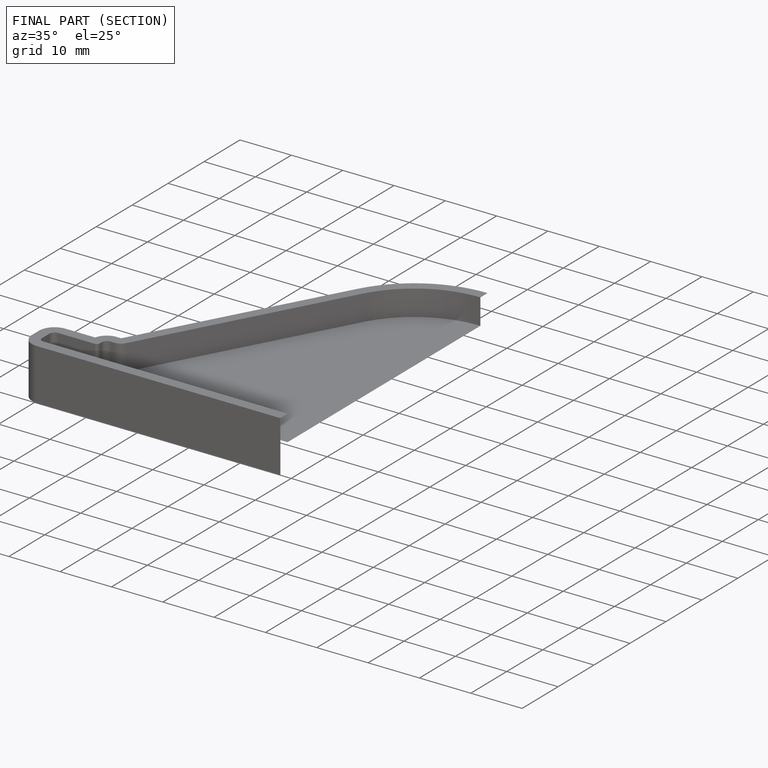
[diagram: finished part — half-section view (interior)]
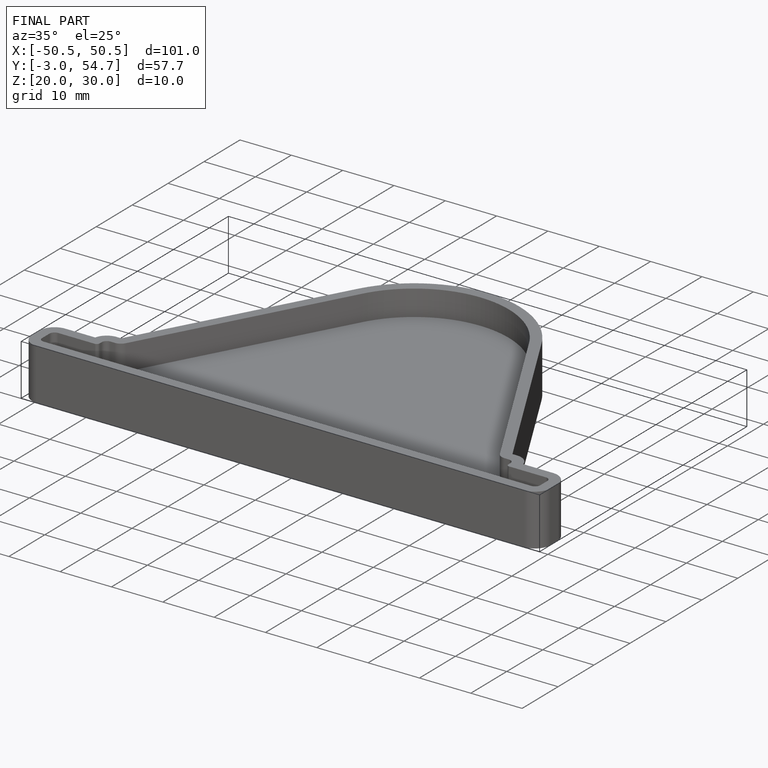
[diagram: finished part — iso view with bounding-box wireframe]
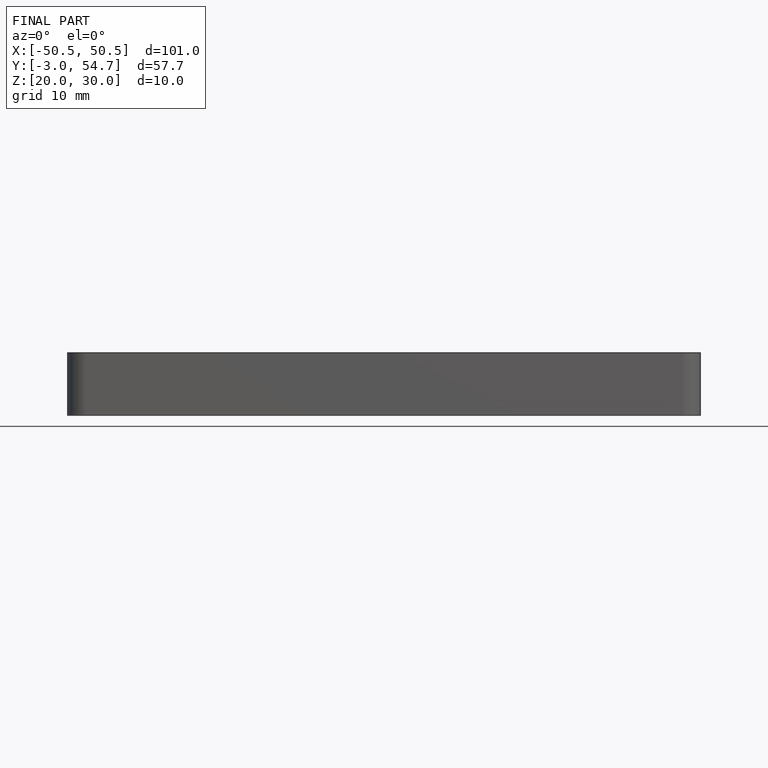
[diagram: finished part — front view with bounding-box wireframe]
